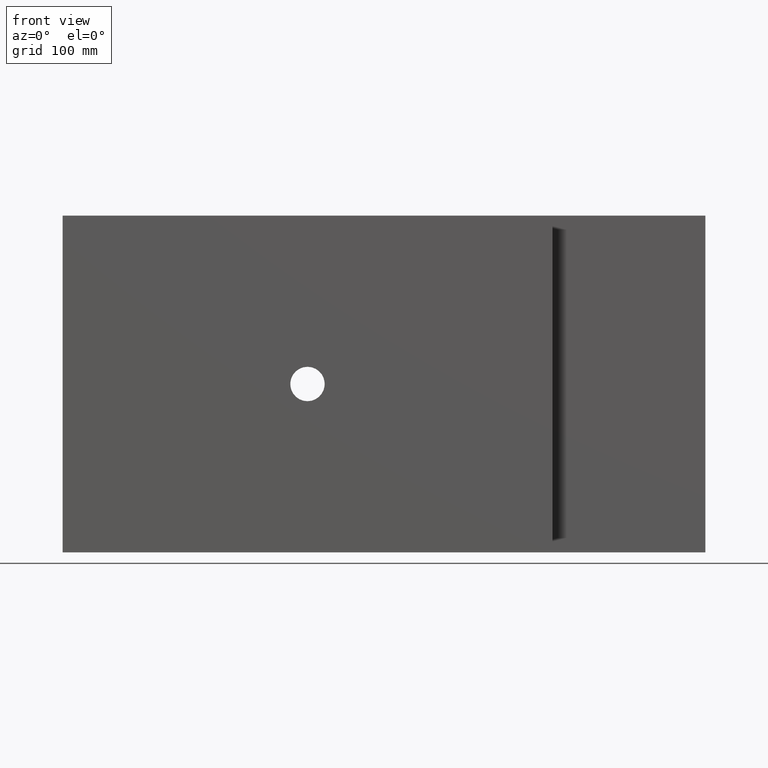
[diagram: clean part render]
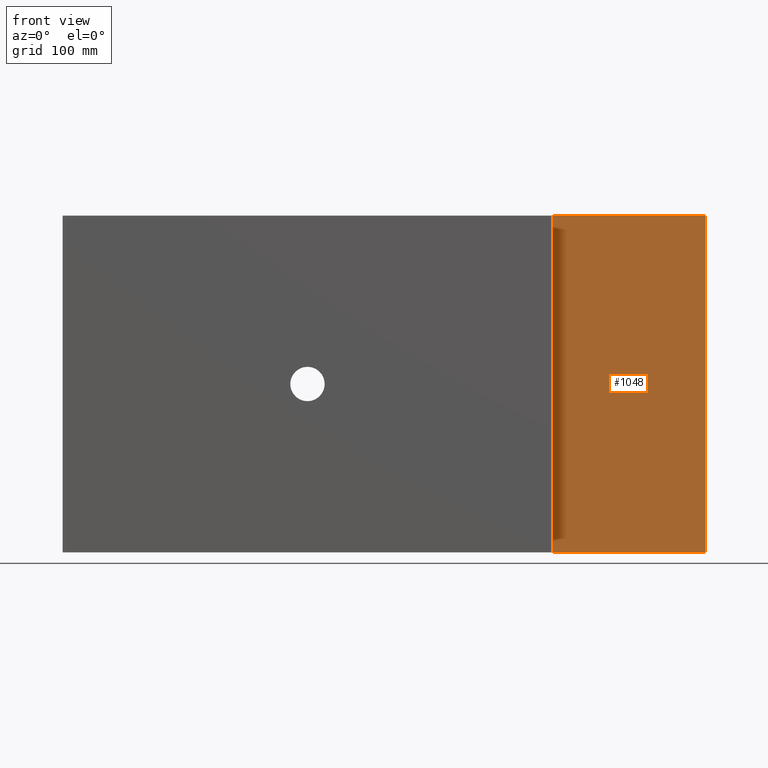
[diagram: same view with one face highlighted and labeled with its STEP entity id]
A machine part, front view. The second image highlights one B-rep face of the part: STEP entity #1048.
In plain terms, the highlighted planar face has unit normal (0, 1, 0).
Its self-contained STEP definition (entity closure, byte-faithful):
#113 = ORIENTED_EDGE ( 'NONE', *, *, #446, .T. ) ;
#199 = EDGE_CURVE ( 'NONE', #652, #2161, #2207, .T. ) ;
#236 = DIRECTION ( 'NONE',  ( 0.0000000000000000000, 0.0000000000000000000, -1.000000000000000000 ) ) ;
#335 = CARTESIAN_POINT ( 'NONE',  ( 620.0000000000001137, 95.00000000000000000, -440.0000000000000568 ) ) ;
#362 = EDGE_LOOP ( 'NONE', ( #2330, #1521, #113, #1555 ) ) ;
#394 = VERTEX_POINT ( 'NONE', #1405 ) ;
#446 = EDGE_CURVE ( 'NONE', #394, #652, #2008, .T. ) ;
#535 = CARTESIAN_POINT ( 'NONE',  ( 840.0000000000000000, 95.00000000000000000, -440.0000000000000568 ) ) ;
#628 = DIRECTION ( 'NONE',  ( 0.0000000000000000000, 1.000000000000000000, 0.0000000000000000000 ) ) ;
#637 = EDGE_CURVE ( 'NONE', #2323, #394, #1158, .T. ) ;
#652 = VERTEX_POINT ( 'NONE', #979 ) ;
#661 = LINE ( 'NONE', #1401, #1592 ) ;
#810 = FACE_OUTER_BOUND ( 'NONE', #362, .T. ) ;
#979 = CARTESIAN_POINT ( 'NONE',  ( 840.0000000000000000, 95.00000000000000000, -440.0000000000000568 ) ) ;
#1031 = VECTOR ( 'NONE', #1083, 1000.000000000000000 ) ;
#1048 = ADVANCED_FACE ( 'NONE', ( #810 ), #1551, .F. ) ;
#1083 = DIRECTION ( 'NONE',  ( 1.000000000000000000, 0.0000000000000000000, 0.0000000000000000000 ) ) ;
#1158 = LINE ( 'NONE', #1903, #2195 ) ;
#1278 = DIRECTION ( 'NONE',  ( 2.523234146875355505E-16, 0.0000000000000000000, 1.000000000000000000 ) ) ;
#1369 = DIRECTION ( 'NONE',  ( 0.0000000000000000000, -0.0000000000000000000, 1.000000000000000000 ) ) ;
#1401 = CARTESIAN_POINT ( 'NONE',  ( 620.0000000000001137, 95.00000000000000000, 0.0000000000000000000 ) ) ;
#1405 = CARTESIAN_POINT ( 'NONE',  ( 640.0000000000000000, 95.00000000000000000, -440.0000000000000568 ) ) ;
#1521 = ORIENTED_EDGE ( 'NONE', *, *, #637, .T. ) ;
#1551 = PLANE ( 'NONE',  #2245 ) ;
#1555 = ORIENTED_EDGE ( 'NONE', *, *, #199, .T. ) ;
#1592 = VECTOR ( 'NONE', #2148, 1000.000000000000000 ) ;
#1903 = CARTESIAN_POINT ( 'NONE',  ( 640.0000000000000000, 95.00000000000000000, 0.0000000000000000000 ) ) ;
#1919 = CARTESIAN_POINT ( 'NONE',  ( 840.0000000000001137, 95.00000000000000000, 2.465190328815661892E-29 ) ) ;
#1937 = EDGE_CURVE ( 'NONE', #2323, #2161, #661, .T. ) ;
#1944 = CARTESIAN_POINT ( 'NONE',  ( 640.0000000000000000, 95.00000000000000000, 2.241082117105136951E-30 ) ) ;
#2008 = LINE ( 'NONE', #335, #1031 ) ;
#2148 = DIRECTION ( 'NONE',  ( 1.000000000000000000, 0.0000000000000000000, 1.120541058552573687E-31 ) ) ;
#2157 = VECTOR ( 'NONE', #1278, 1000.000000000000000 ) ;
#2161 = VERTEX_POINT ( 'NONE', #1919 ) ;
#2195 = VECTOR ( 'NONE', #236, 1000.000000000000000 ) ;
#2207 = LINE ( 'NONE', #535, #2157 ) ;
#2245 = AXIS2_PLACEMENT_3D ( 'NONE', #2301, #628, #1369 ) ;
#2301 = CARTESIAN_POINT ( 'NONE',  ( 0.0000000000000000000, 95.00000000000000000, 0.0000000000000000000 ) ) ;
#2323 = VERTEX_POINT ( 'NONE', #1944 ) ;
#2330 = ORIENTED_EDGE ( 'NONE', *, *, #1937, .F. ) ;